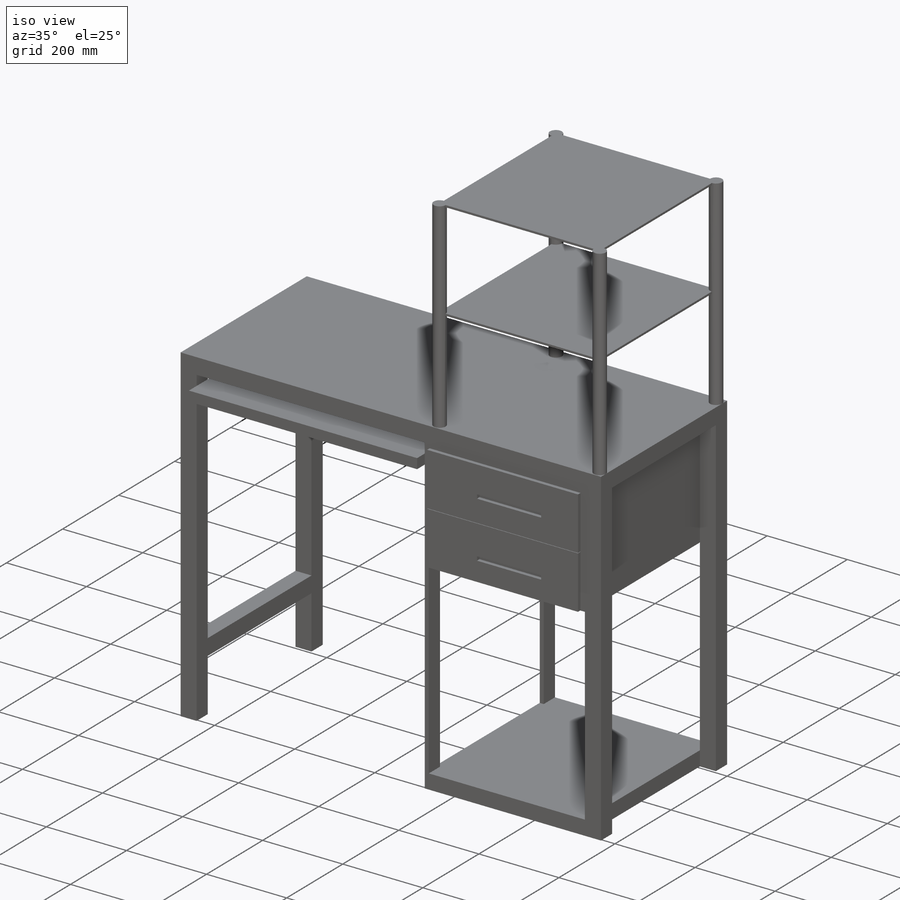
[diagram: iso view]
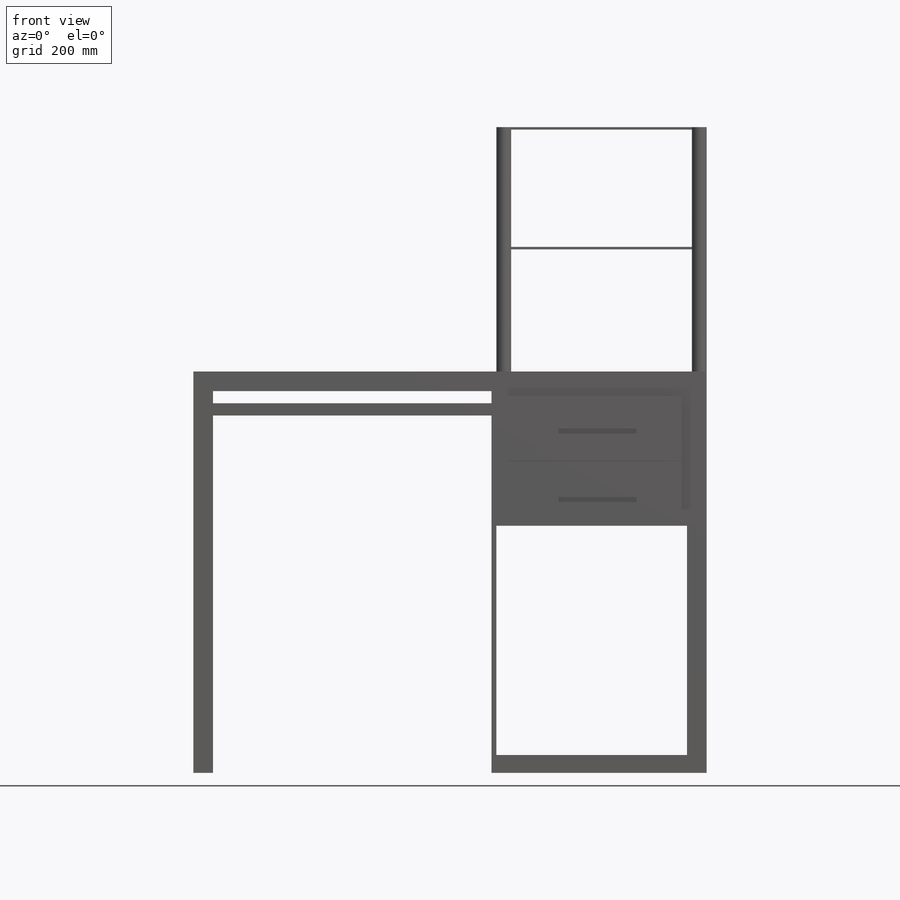
[diagram: front view]
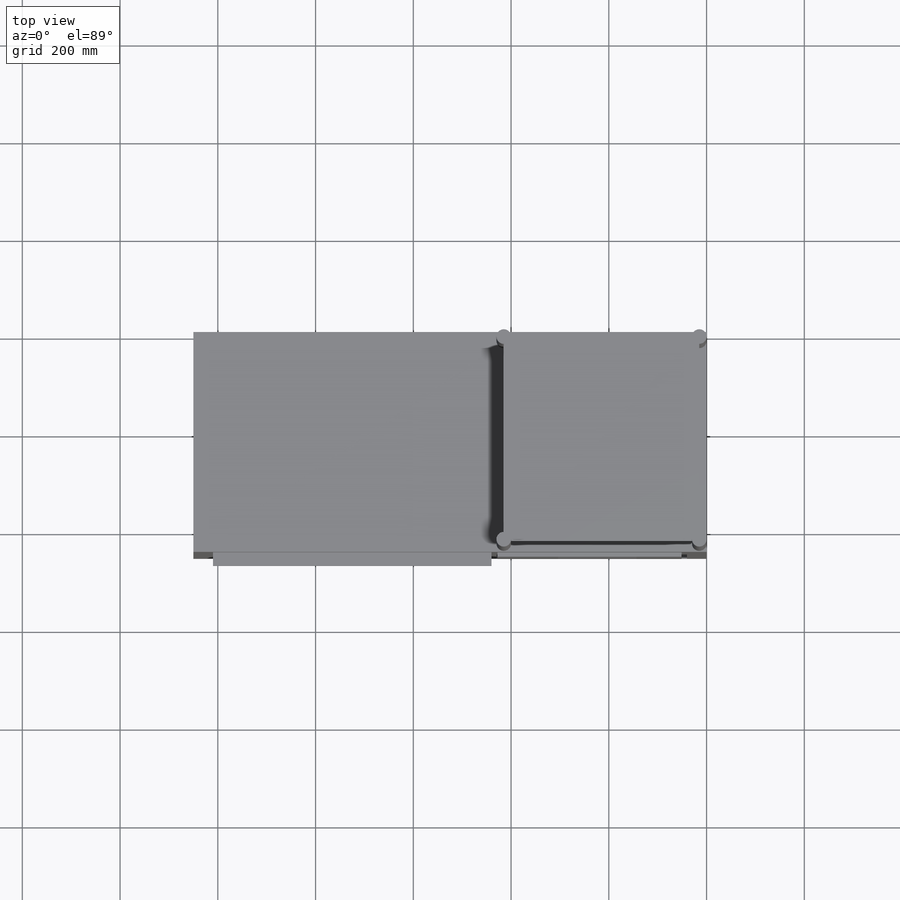
[diagram: top view]
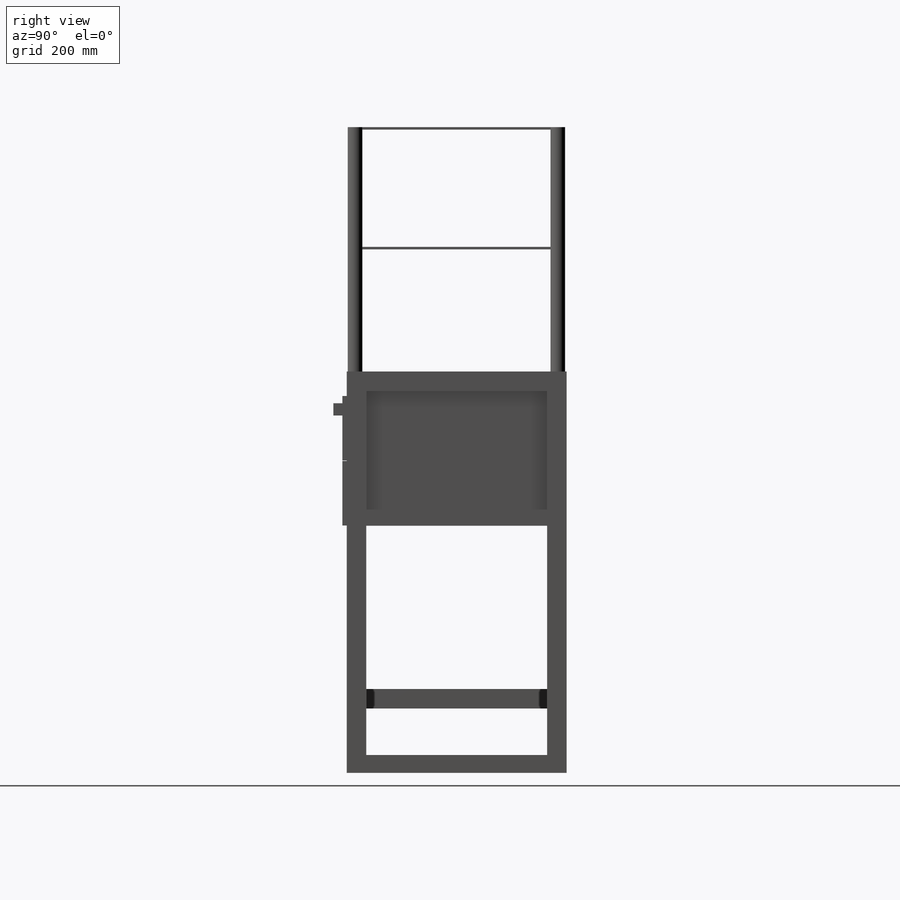
[diagram: right view]
SOLIDWORKS PART (.sldprt)
format: sldprt  version: not decoded by parser v0  size: 436,224 bytes
history: native  units: mm
features: sketch x12, extrude x9, cut_extrude x3, material x1, plane x1 (+12 scaffold rows collapsed)
feature tree (38):
  scaffold x12  (default folders/planes/origin — collapsed)
  material  "Material <not specified>"
  sketch  "Sketch1"  dims[c1.D1=900.0mm c1.D2=1050.0mm c2.D1=40.0mm]
  extrude  "Boss-Extrude1"  Depth=450mm
  sketch  "Sketch2"  dims[D1=40.0mm D2=40.0mm D3=40.0mm D4=40.0mm D5=40.0mm D6=40.0mm D7=40.0mm D8=40.0mm]
  extrude  "Boss-Extrude2"  Depth=781.17mm
  sketch  "Sketch3"  dims[D1=400.0mm]
  extrude  "Boss-Extrude3"  [1 undecoded]
  sketch  "Sketch4"
  extrude  "Boss-Extrude4"  Depth=50mm
  sketch  "Sketch5"  dims[c1.D4=132.0mm c1.D5=65.0mm c1.D6=50.0mm c1.D7=10.0mm c1.D8=67.0mm c2.D5=1.0mm c2.D2=2.0 c2.D1=6.0 c2.D3=6.0]
  extrude  "Boss-Extrude5"  Depth=9mm
  sketch  "Sketch6"  dims[D1=40.0mm D2=10.0mm D3=390.0mm]
  cut_extrude  "Cut-Extrude1"  Depth=358mm
  sketch  "Sketch7"
  cut_extrude  "Cut-Extrude2"  Depth=10mm
  sketch  "Sketch8"  dims[D1=40.0mm]
  extrude  "Boss-Extrude6"  [1 undecoded]
  sketch  "Sketch9"
  cut_extrude  "Cut-Extrude3"  [1 undecoded]
  sketch  "Sketch10"  dims[D1=30.0mm D2=400.0mm D3=400.0mm]
  extrude  "Boss-Extrude7"  Depth=500mm
  sketch  "Sketch11"
  extrude  "Boss-Extrude8"  Depth=5mm
  plane  "Plane1"  Offset=250mm
  sketch  "Sketch12"
  extrude  "Boss-Extrude9"  Depth=5mm
decode coverage: 16 of 24 modeling features carry decoded parameters
note: 3 parameter values undecoded
summary: no parameter record found for 3 features
note: suppression state not decoded; provenance and decode notes live in map.json
